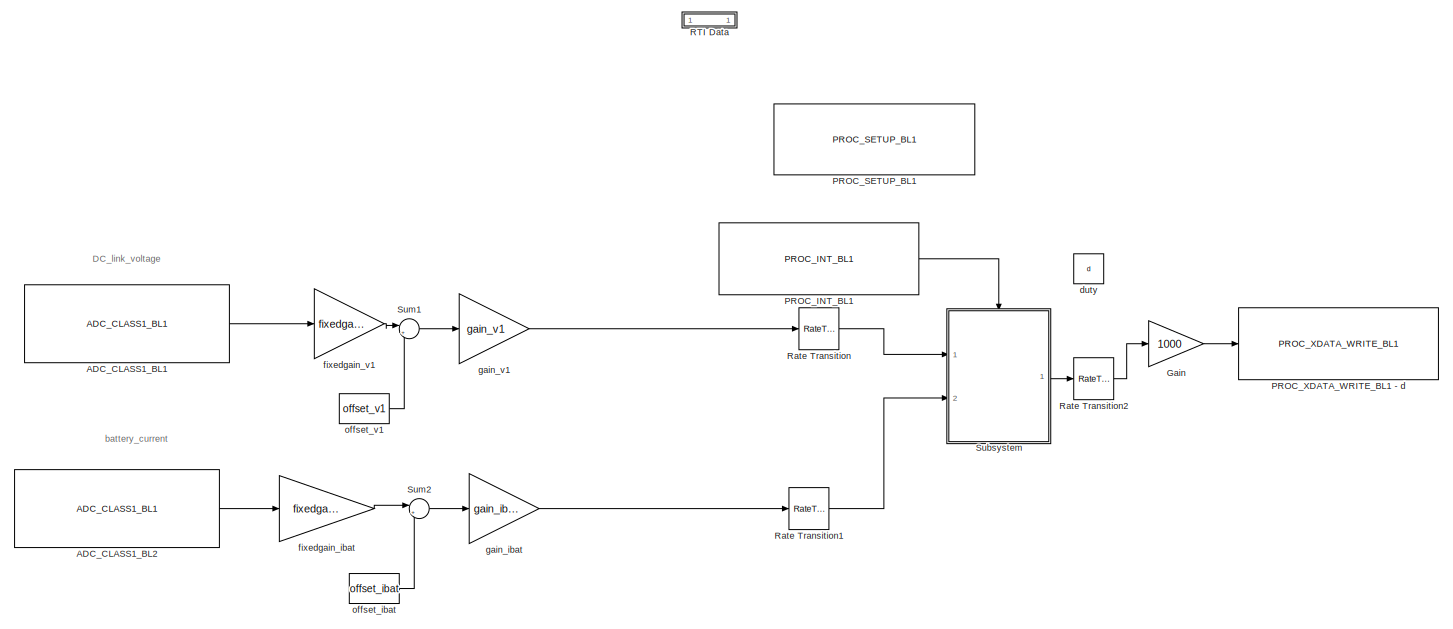
[diagram: root canvas - part 1/2, most of the canvas]
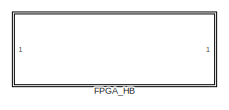
[diagram: root canvas - part 2/2, middle right region]
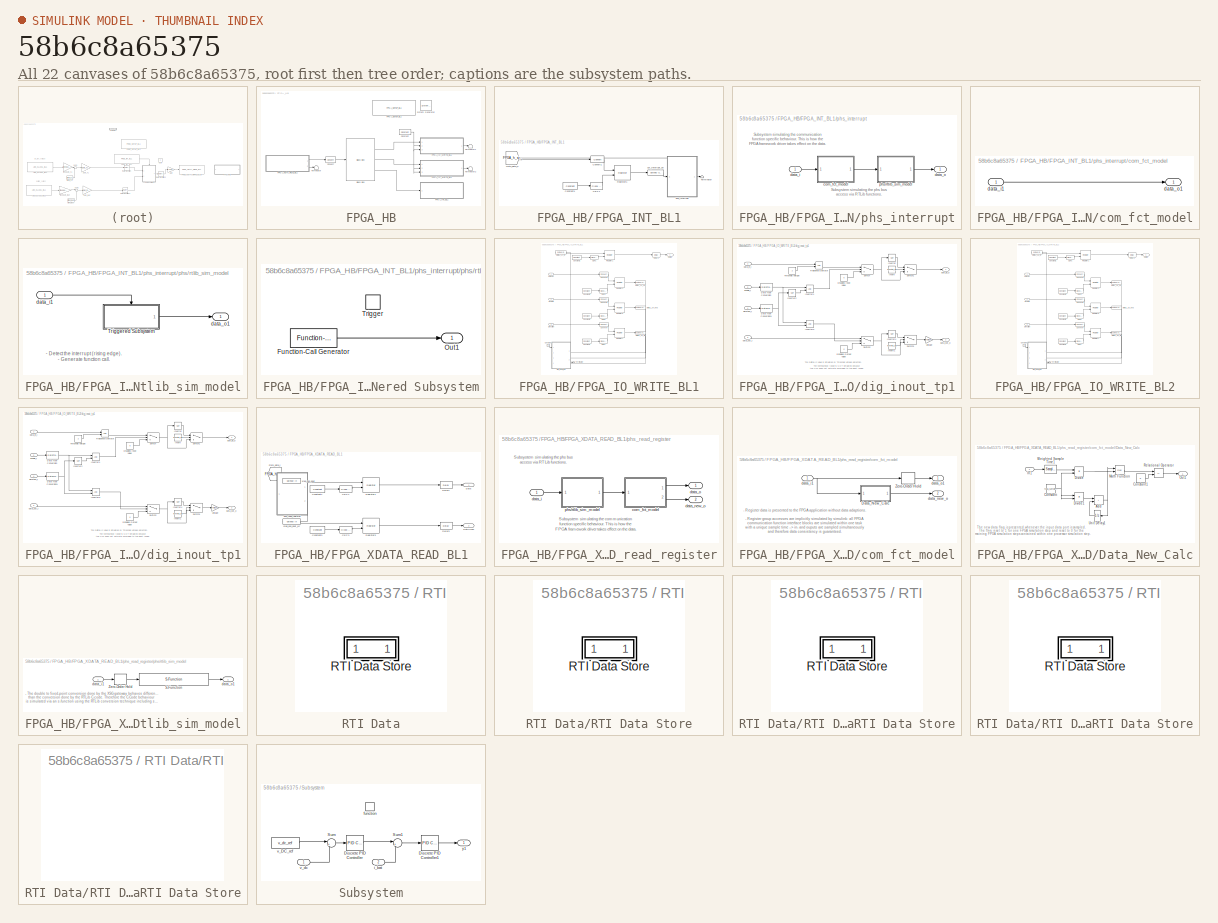
[diagram: thumbnail index - all 22 canvases of the model, root first then tree order]
MODEL slx_58b6c8a65375
KIND model
CONFIG AbsTol = auto
CONFIG EnableMultiTasking = off
CONFIG FixedStep = 50e-6
CONFIG InitFcn = , if any(exist('rtifpga_mdlclblib', 'file') ~= 0), rtifpga_mdlclblib('Init', bdroot); end,\n
CONFIG MaxStep = auto
CONFIG MinStep = auto
CONFIG PostLoadFcn = , if any(exist('dsrtsu_mdlpostloadfcn', 'file') ~= 0), dsrtsu_mdlpostloadfcn('Execute', bdroot); end, \n
CONFIG RelTol = 1e-3
CONFIG SampleTimeConstraint = Unconstrained
CONFIG Solver = VariableStepAuto
CONFIG SolverName = VariableStepAuto
CONFIG StartTime = 0.0
CONFIG StopTime = Inf
WORKSPACE source: mxarray member
WORKSPACE FPGA_h_sim_1_Register_1_1_1_write: Simulink.Signal (value not decoded)
BLOCK [Reference] ADC_CLASS1_BL1  REF=rti1202lib_adc_class1/ADC_CLASS1_BL1
  Ports = [0, 1]
  SourceBlock = rti1202lib_adc_class1/ADC_CLASS1_BL1
  SourceType = RTI
BLOCK [Reference] ADC_CLASS1_BL2  REF=rti1202lib_adc_class1/ADC_CLASS1_BL1
  Ports = [0, 1]
  SourceBlock = rti1202lib_adc_class1/ADC_CLASS1_BL1
  SourceType = RTI
BLOCK [SubSystem] FPGA_HB
  Ports = []
  RequestExecContextInheritance = off
BLOCK [Reference] FPGA_HB/ System Generator  REF=xbsIndex_r4/ System Generator
  AttributesFormatString = System\nGenerator
  Ports = []
  SourceBlock = xbsIndex_r4/ System Generator
  SourceType = Xilinx System Generator Block
  Tag = genX
  UserDataPersistent = on
BLOCK [Reference] FPGA_HB/Black Box  REF=xbsIndex_r4/Black Box
  Ports = [1, 3]
  SourceBlock = xbsIndex_r4/Black Box
  SourceType = Xilinx Black Box Block
BLOCK [Reference] FPGA_HB/Constant  REF=xbsIndex_r4/Constant
  Ports = [0, 1]
  SourceBlock = xbsIndex_r4/Constant
  SourceType = Xilinx Constant Block Block
BLOCK [Reference] FPGA_HB/Convert  REF=xbsIndex_r4/Convert
  Ports = [1, 1]
  SourceBlock = xbsIndex_r4/Convert
  SourceType = Xilinx Type Converter Block
BLOCK [SubSystem] FPGA_HB/FPGA_INT_BL1
  CloseFcn = try, rti_fpga_blk_closefcn(gcbh); catch,errordlg({lasterr, '','Please check your RTI installation.'},['Error: ' upper(bdroot)], 'replace'); end
  CopyFcn = try, rti_fpga_blk_copyfcn(gcbh); catch,errordlg({lasterr, '','Please check your RTI installation.'},['Error: ' upper(bdroot)], 'replace'); end
  DeleteFcn = try, rti_fpga_blk_deletefcn(gcbh); catch,errordlg({lasterr, '','Please check your RTI installation.'},['Error: ' upper(bdroot)], 'replace'); end
  InitFcn = try, rti_fpga_blk_initfcn(gcbh); catch,errordlg({lasterr, '','Please check your RTI installation.'},['Error: ' upper(bdroot)], 'replace'); end
  LoadFcn = try, rti_fpga_blk_loadfcn(gcbh); catch,errordlg({lasterr, '','Please check your RTI installation.'},['Error: ' upper(bdroot)], 'replace'); end
  MaskHideContents = on
  ModelCloseFcn = try, rti_fpga_blk_modelclosefcn(gcbh); catch,errordlg({lasterr, '','Please check your RTI installation.'},['Error: ' upper(bdroot)], 'replace'); end
  NameChangeFcn = try, rti_fpga_blk_namechangefcn(gcbh); catch,errordlg({lasterr, '','Please check your RTI installation.'},['Error: ' upper(bdroot)], 'replace'); end
  OpenFcn = try, rti_fpga_blk_openfcn(gcbh); catch,errordlg({lasterr, '','Please check your RTI installation.'},['Error: ' upper(bdroot)], 'replace'); end
  ParentCloseFcn = try, rti_fpga_blk_parentclosefcn(gcbh); catch,errordlg({lasterr, '','Please check your RTI installation.'},['Error: ' upper(bdroot)], 'replace'); end
  Ports = [1]
  PreSaveFcn = try, rti_fpga_blk_presavefcn(gcbh); catch,errordlg({lasterr, '','Please check your RTI installation.'},['Error: ' upper(bdroot)], 'replace'); end
  RequestExecContextInheritance = off
  StartFcn = try, rti_fpga_blk_startfcn(gcbh); catch,errordlg({lasterr, '','Please check your RTI installation.'},['Error: ' upper(bdroot)], 'replace'); end
BLOCK [Reference] FPGA_HB/FPGA_INT_BL1/CEP1  REF=xbsIndex_r4/Clock Enable Probe
  Ports = [1, 1]
  SourceBlock = xbsIndex_r4/Clock Enable Probe
  SourceType = Xilinx Clock Enable Probe Block
BLOCK [Reference] FPGA_HB/FPGA_INT_BL1/Constant1  REF=xbsIndex_r4/Constant
  Ports = [0, 1]
  SourceBlock = xbsIndex_r4/Constant
  SourceType = Xilinx Constant Block Block
BLOCK [Reference] FPGA_HB/FPGA_INT_BL1/Convert1  REF=xbsIndex_r4/Convert
  Ports = [1, 1]
  SourceBlock = xbsIndex_r4/Convert
  SourceType = Xilinx Type Converter Block
BLOCK [Goto] FPGA_HB/FPGA_INT_BL1/Goto_data_o
  GotoTag = FPGA_h_sim_1_Interrupt_1_1_write
  TagVisibility = global
BLOCK [Inport] FPGA_HB/FPGA_INT_BL1/Int
BLOCK [Reference] FPGA_HB/FPGA_INT_BL1/Register1  REF=xbsIndex_r4/Register
  Ports = [2, 1]
  SourceBlock = xbsIndex_r4/Register
  SourceType = Xilinx Register Block
BLOCK [Terminator] FPGA_HB/FPGA_INT_BL1/Terminator
BLOCK [SubSystem] FPGA_HB/FPGA_INT_BL1/phs_interrupt
  Ports = [1, 1]
  RequestExecContextInheritance = off
BLOCK [SubSystem] FPGA_HB/FPGA_INT_BL1/phs_interrupt/com_fct_model
  Ports = [1, 1]
  RequestExecContextInheritance = off
BLOCK [Inport] FPGA_HB/FPGA_INT_BL1/phs_interrupt/com_fct_model/data_i1
BLOCK [Outport] FPGA_HB/FPGA_INT_BL1/phs_interrupt/com_fct_model/data_o1
  VectorParamsAs1DForOutWhenUnconnected = off
BLOCK [Inport] FPGA_HB/FPGA_INT_BL1/phs_interrupt/data_i
BLOCK [Outport] FPGA_HB/FPGA_INT_BL1/phs_interrupt/data_o
  VectorParamsAs1DForOutWhenUnconnected = off
BLOCK [SubSystem] FPGA_HB/FPGA_INT_BL1/phs_interrupt/phs//rtlib_sim_model
  Ports = [1, 1]
  RequestExecContextInheritance = off
BLOCK [SubSystem] FPGA_HB/FPGA_INT_BL1/phs_interrupt/phs//rtlib_sim_model/Triggered Subsystem
  Ports = [0, 1, 0, 1]
  RequestExecContextInheritance = off
  TreatAsAtomicUnit = on
BLOCK [Reference] FPGA_HB/FPGA_INT_BL1/phs_interrupt/phs//rtlib_sim_model/Triggered Subsystem/Function-Call Generator  REF=simulink/Ports &
Subsystems/Function-Call
Generator
  Ports = [0, 1]
  SourceBlock = simulink/Ports &\nSubsystems/Function-Call\nGenerator
  SourceProductBaseCode = SL
  SourceType = Function-Call Generator
BLOCK [Outport] FPGA_HB/FPGA_INT_BL1/phs_interrupt/phs//rtlib_sim_model/Triggered Subsystem/Out1
  VectorParamsAs1DForOutWhenUnconnected = off
BLOCK [TriggerPort] FPGA_HB/FPGA_INT_BL1/phs_interrupt/phs//rtlib_sim_model/Triggered Subsystem/Trigger
  Ports = []
  StatesWhenEnabling = held
  VariantControl = (inherit)
BLOCK [Inport] FPGA_HB/FPGA_INT_BL1/phs_interrupt/phs//rtlib_sim_model/data_i1
BLOCK [Outport] FPGA_HB/FPGA_INT_BL1/phs_interrupt/phs//rtlib_sim_model/data_o1
  VectorParamsAs1DForOutWhenUnconnected = off
BLOCK [Reference] FPGA_HB/FPGA_INT_BL1/usr_interrupt_00  REF=xbsIndex_r4/Gateway Out
  Ports = [1, 1]
  SourceBlock = xbsIndex_r4/Gateway Out
  SourceType = Xilinx Gateway Out Block
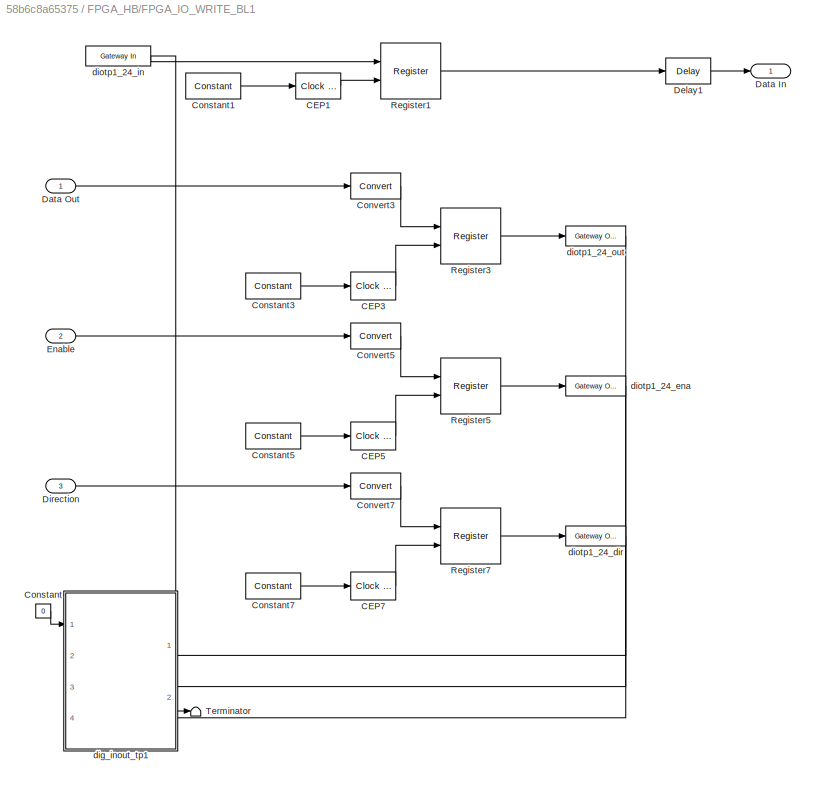
BLOCK [SubSystem] FPGA_HB/FPGA_IO_WRITE_BL1
  CloseFcn = try, rti_fpga_blk_closefcn(gcbh); catch,errordlg({lasterr, '','Please check your RTI installation.'},['Error: ' upper(bdroot)], 'replace'); end
  CopyFcn = try, rti_fpga_blk_copyfcn(gcbh); catch,errordlg({lasterr, '','Please check your RTI installation.'},['Error: ' upper(bdroot)], 'replace'); end
  DeleteFcn = try, rti_fpga_blk_deletefcn(gcbh); catch,errordlg({lasterr, '','Please check your RTI installation.'},['Error: ' upper(bdroot)], 'replace'); end
  InitFcn = try, rti_fpga_blk_initfcn(gcbh); catch,errordlg({lasterr, '','Please check your RTI installation.'},['Error: ' upper(bdroot)], 'replace'); end
  LoadFcn = try, rti_fpga_blk_loadfcn(gcbh); catch,errordlg({lasterr, '','Please check your RTI installation.'},['Error: ' upper(bdroot)], 'replace'); end
  MaskHideContents = on
  ModelCloseFcn = try, rti_fpga_blk_modelclosefcn(gcbh); catch,errordlg({lasterr, '','Please check your RTI installation.'},['Error: ' upper(bdroot)], 'replace'); end
  NameChangeFcn = try, rti_fpga_blk_namechangefcn(gcbh); catch,errordlg({lasterr, '','Please check your RTI installation.'},['Error: ' upper(bdroot)], 'replace'); end
  OpenFcn = try, rti_fpga_blk_openfcn(gcbh); catch,errordlg({lasterr, '','Please check your RTI installation.'},['Error: ' upper(bdroot)], 'replace'); end
  ParentCloseFcn = try, rti_fpga_blk_parentclosefcn(gcbh); catch,errordlg({lasterr, '','Please check your RTI installation.'},['Error: ' upper(bdroot)], 'replace'); end
  Ports = [3, 1]
  PreSaveFcn = try, rti_fpga_blk_presavefcn(gcbh); catch,errordlg({lasterr, '','Please check your RTI installation.'},['Error: ' upper(bdroot)], 'replace'); end
  RequestExecContextInheritance = off
  StartFcn = try, rti_fpga_blk_startfcn(gcbh); catch,errordlg({lasterr, '','Please check your RTI installation.'},['Error: ' upper(bdroot)], 'replace'); end
BLOCK [Reference] FPGA_HB/FPGA_IO_WRITE_BL1/CEP1  REF=xbsIndex_r4/Clock Enable Probe
  Ports = [1, 1]
  SourceBlock = xbsIndex_r4/Clock Enable Probe
  SourceType = Xilinx Clock Enable Probe Block
BLOCK [Reference] FPGA_HB/FPGA_IO_WRITE_BL1/CEP3  REF=xbsIndex_r4/Clock Enable Probe
  Ports = [1, 1]
  SourceBlock = xbsIndex_r4/Clock Enable Probe
  SourceType = Xilinx Clock Enable Probe Block
BLOCK [Reference] FPGA_HB/FPGA_IO_WRITE_BL1/CEP5  REF=xbsIndex_r4/Clock Enable Probe
  Ports = [1, 1]
  SourceBlock = xbsIndex_r4/Clock Enable Probe
  SourceType = Xilinx Clock Enable Probe Block
BLOCK [Reference] FPGA_HB/FPGA_IO_WRITE_BL1/CEP7  REF=xbsIndex_r4/Clock Enable Probe
  Ports = [1, 1]
  SourceBlock = xbsIndex_r4/Clock Enable Probe
  SourceType = Xilinx Clock Enable Probe Block
BLOCK [Constant] FPGA_HB/FPGA_IO_WRITE_BL1/Constant
  Value = 0
BLOCK [Reference] FPGA_HB/FPGA_IO_WRITE_BL1/Constant1  REF=xbsIndex_r4/Constant
  Ports = [0, 1]
  SourceBlock = xbsIndex_r4/Constant
  SourceType = Xilinx Constant Block Block
BLOCK [Reference] FPGA_HB/FPGA_IO_WRITE_BL1/Constant3  REF=xbsIndex_r4/Constant
  Ports = [0, 1]
  SourceBlock = xbsIndex_r4/Constant
  SourceType = Xilinx Constant Block Block
BLOCK [Reference] FPGA_HB/FPGA_IO_WRITE_BL1/Constant5  REF=xbsIndex_r4/Constant
  Ports = [0, 1]
  SourceBlock = xbsIndex_r4/Constant
  SourceType = Xilinx Constant Block Block
BLOCK [Reference] FPGA_HB/FPGA_IO_WRITE_BL1/Constant7  REF=xbsIndex_r4/Constant
  Ports = [0, 1]
  SourceBlock = xbsIndex_r4/Constant
  SourceType = Xilinx Constant Block Block
BLOCK [Reference] FPGA_HB/FPGA_IO_WRITE_BL1/Convert3  REF=xbsIndex_r4/Convert
  Ports = [1, 1]
  SourceBlock = xbsIndex_r4/Convert
  SourceType = Xilinx Type Converter Block
BLOCK [Reference] FPGA_HB/FPGA_IO_WRITE_BL1/Convert5  REF=xbsIndex_r4/Convert
  Ports = [1, 1]
  SourceBlock = xbsIndex_r4/Convert
  SourceType = Xilinx Type Converter Block
BLOCK [Reference] FPGA_HB/FPGA_IO_WRITE_BL1/Convert7  REF=xbsIndex_r4/Convert
  Ports = [1, 1]
  SourceBlock = xbsIndex_r4/Convert
  SourceType = Xilinx Type Converter Block
BLOCK [Outport] FPGA_HB/FPGA_IO_WRITE_BL1/Data In
BLOCK [Inport] FPGA_HB/FPGA_IO_WRITE_BL1/Data Out
BLOCK [Reference] FPGA_HB/FPGA_IO_WRITE_BL1/Delay1  REF=xbsIndex_r4/Delay
  Ports = [1, 1]
  SourceBlock = xbsIndex_r4/Delay
  SourceType = Xilinx Delay Block
BLOCK [Inport] FPGA_HB/FPGA_IO_WRITE_BL1/Direction
  Port = 3
BLOCK [Inport] FPGA_HB/FPGA_IO_WRITE_BL1/Enable
  Port = 2
BLOCK [Reference] FPGA_HB/FPGA_IO_WRITE_BL1/Register1  REF=xbsIndex_r4/Register
  Ports = [2, 1]
  SourceBlock = xbsIndex_r4/Register
  SourceType = Xilinx Register Block
BLOCK [Reference] FPGA_HB/FPGA_IO_WRITE_BL1/Register3  REF=xbsIndex_r4/Register
  Ports = [2, 1]
  SourceBlock = xbsIndex_r4/Register
  SourceType = Xilinx Register Block
BLOCK [Reference] FPGA_HB/FPGA_IO_WRITE_BL1/Register5  REF=xbsIndex_r4/Register
  Ports = [2, 1]
  SourceBlock = xbsIndex_r4/Register
  SourceType = Xilinx Register Block
BLOCK [Reference] FPGA_HB/FPGA_IO_WRITE_BL1/Register7  REF=xbsIndex_r4/Register
  Ports = [2, 1]
  SourceBlock = xbsIndex_r4/Register
  SourceType = Xilinx Register Block
BLOCK [Terminator] FPGA_HB/FPGA_IO_WRITE_BL1/Terminator
BLOCK [SubSystem] FPGA_HB/FPGA_IO_WRITE_BL1/dig_inout_tp1
  Ports = [4, 2]
  RequestExecContextInheritance = off
BLOCK [DataTypeConversion] FPGA_HB/FPGA_IO_WRITE_BL1/dig_inout_tp1/Data Type Conversion
  RndMeth = Floor
  SaturateOnIntegerOverflow = off
BLOCK [DataTypeConversion] FPGA_HB/FPGA_IO_WRITE_BL1/dig_inout_tp1/Data Type Conversion1
  RndMeth = Floor
  SaturateOnIntegerOverflow = off
BLOCK [Constant] FPGA_HB/FPGA_IO_WRITE_BL1/dig_inout_tp1/Disabled Input Value
  Value = 0
BLOCK [Constant] FPGA_HB/FPGA_IO_WRITE_BL1/dig_inout_tp1/Disabled Output Value
  Value = 0
BLOCK [Constant] FPGA_HB/FPGA_IO_WRITE_BL1/dig_inout_tp1/Invert
  Value = inverted_dio
BLOCK [Constant] FPGA_HB/FPGA_IO_WRITE_BL1/dig_inout_tp1/Invert1
  Value = inverted_dio
BLOCK [Logic] FPGA_HB/FPGA_IO_WRITE_BL1/dig_inout_tp1/Inverter
  AllPortsSameDT = off
  Operator = NOT
  OutDataTypeStr = boolean
  Ports = [1, 1]
BLOCK [Logic] FPGA_HB/FPGA_IO_WRITE_BL1/dig_inout_tp1/Inverter1
  AllPortsSameDT = off
  OutDataTypeStr = boolean
  Ports = [2, 1]
BLOCK [Logic] FPGA_HB/FPGA_IO_WRITE_BL1/dig_inout_tp1/Inverter2
  AllPortsSameDT = off
  Operator = NOT
  OutDataTypeStr = boolean
  Ports = [1, 1]
BLOCK [Logic] FPGA_HB/FPGA_IO_WRITE_BL1/dig_inout_tp1/Inverter3
  AllPortsSameDT = off
  OutDataTypeStr = boolean
  Ports = [2, 1]
BLOCK [Logic] FPGA_HB/FPGA_IO_WRITE_BL1/dig_inout_tp1/Inverter4
  AllPortsSameDT = off
  Operator = NOT
  OutDataTypeStr = boolean
  Ports = [1, 1]
BLOCK [RelationalOperator] FPGA_HB/FPGA_IO_WRITE_BL1/dig_inout_tp1/Relational Operator
  InputSameDT = off
  OutDataTypeStr = boolean
  Ports = [2, 1]
BLOCK [Switch] FPGA_HB/FPGA_IO_WRITE_BL1/dig_inout_tp1/Switch
  InputSameDT = off
  SaturateOnIntegerOverflow = off
  Threshold = 1
BLOCK [Switch] FPGA_HB/FPGA_IO_WRITE_BL1/dig_inout_tp1/Switch1
  InputSameDT = off
  SaturateOnIntegerOverflow = off
  Threshold = 1
BLOCK [Switch] FPGA_HB/FPGA_IO_WRITE_BL1/dig_inout_tp1/Switch2
  InputSameDT = off
  SaturateOnIntegerOverflow = off
  Threshold = 1
BLOCK [Switch] FPGA_HB/FPGA_IO_WRITE_BL1/dig_inout_tp1/Switch3
  InputSameDT = off
  SaturateOnIntegerOverflow = off
  Threshold = 1
BLOCK [Constant] FPGA_HB/FPGA_IO_WRITE_BL1/dig_inout_tp1/Threshold Voltage
  Value = 2
BLOCK [Gain] FPGA_HB/FPGA_IO_WRITE_BL1/dig_inout_tp1/Voltage
  Gain = voltage
  ParamDataTypeStr = float('double')
BLOCK [Inport] FPGA_HB/FPGA_IO_WRITE_BL1/dig_inout_tp1/data_in_i
BLOCK [Outport] FPGA_HB/FPGA_IO_WRITE_BL1/dig_inout_tp1/data_in_o
  VectorParamsAs1DForOutWhenUnconnected = off
BLOCK [Inport] FPGA_HB/FPGA_IO_WRITE_BL1/dig_inout_tp1/data_out_i
  Port = 3
BLOCK [Outport] FPGA_HB/FPGA_IO_WRITE_BL1/dig_inout_tp1/data_out_o
  Port = 2
  VectorParamsAs1DForOutWhenUnconnected = off
BLOCK [Inport] FPGA_HB/FPGA_IO_WRITE_BL1/dig_inout_tp1/direction_i
  Port = 4
BLOCK [Inport] FPGA_HB/FPGA_IO_WRITE_BL1/dig_inout_tp1/enable_i
  Port = 2
BLOCK [Reference] FPGA_HB/FPGA_IO_WRITE_BL1/diotp1_24_dir  REF=xbsIndex_r4/Gateway Out
  Ports = [1, 1]
  SourceBlock = xbsIndex_r4/Gateway Out
  SourceType = Xilinx Gateway Out Block
BLOCK [Reference] FPGA_HB/FPGA_IO_WRITE_BL1/diotp1_24_ena  REF=xbsIndex_r4/Gateway Out
  Ports = [1, 1]
  SourceBlock = xbsIndex_r4/Gateway Out
  SourceType = Xilinx Gateway Out Block
BLOCK [Reference] FPGA_HB/FPGA_IO_WRITE_BL1/diotp1_24_in  REF=xbsIndex_r4/Gateway In
  Ports = [1, 1]
  SourceBlock = xbsIndex_r4/Gateway In
  SourceType = Xilinx Gateway In Block
BLOCK [Reference] FPGA_HB/FPGA_IO_WRITE_BL1/diotp1_24_out  REF=xbsIndex_r4/Gateway Out
  Ports = [1, 1]
  SourceBlock = xbsIndex_r4/Gateway Out
  SourceType = Xilinx Gateway Out Block
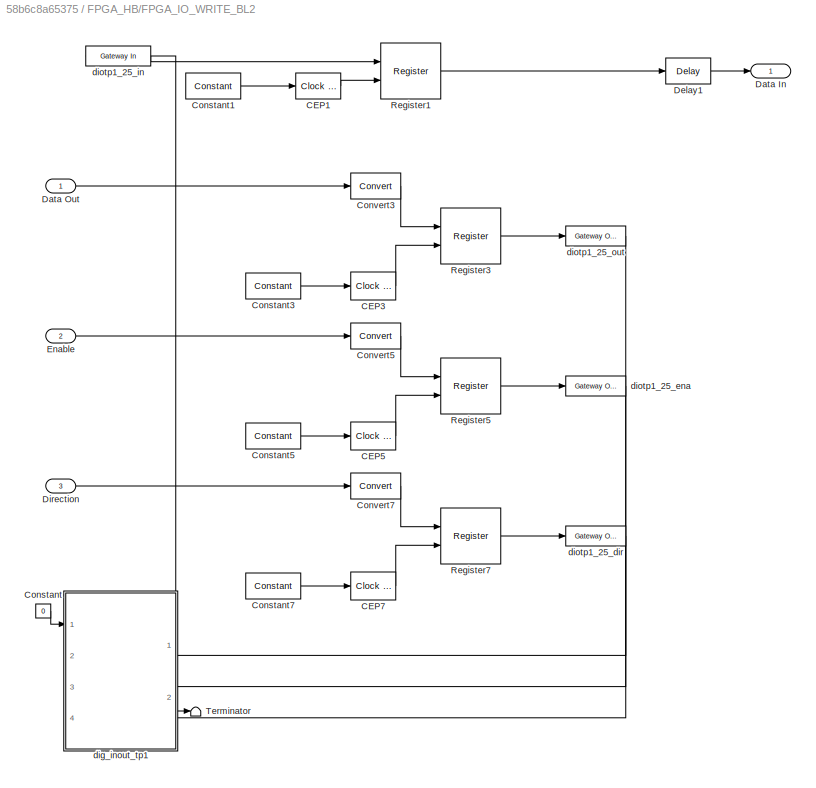
BLOCK [SubSystem] FPGA_HB/FPGA_IO_WRITE_BL2
  CloseFcn = try, rti_fpga_blk_closefcn(gcbh); catch,errordlg({lasterr, '','Please check your RTI installation.'},['Error: ' upper(bdroot)], 'replace'); end
  CopyFcn = try, rti_fpga_blk_copyfcn(gcbh); catch,errordlg({lasterr, '','Please check your RTI installation.'},['Error: ' upper(bdroot)], 'replace'); end
  DeleteFcn = try, rti_fpga_blk_deletefcn(gcbh); catch,errordlg({lasterr, '','Please check your RTI installation.'},['Error: ' upper(bdroot)], 'replace'); end
  InitFcn = try, rti_fpga_blk_initfcn(gcbh); catch,errordlg({lasterr, '','Please check your RTI installation.'},['Error: ' upper(bdroot)], 'replace'); end
  LoadFcn = try, rti_fpga_blk_loadfcn(gcbh); catch,errordlg({lasterr, '','Please check your RTI installation.'},['Error: ' upper(bdroot)], 'replace'); end
  MaskHideContents = on
  ModelCloseFcn = try, rti_fpga_blk_modelclosefcn(gcbh); catch,errordlg({lasterr, '','Please check your RTI installation.'},['Error: ' upper(bdroot)], 'replace'); end
  NameChangeFcn = try, rti_fpga_blk_namechangefcn(gcbh); catch,errordlg({lasterr, '','Please check your RTI installation.'},['Error: ' upper(bdroot)], 'replace'); end
  OpenFcn = try, rti_fpga_blk_openfcn(gcbh); catch,errordlg({lasterr, '','Please check your RTI installation.'},['Error: ' upper(bdroot)], 'replace'); end
  ParentCloseFcn = try, rti_fpga_blk_parentclosefcn(gcbh); catch,errordlg({lasterr, '','Please check your RTI installation.'},['Error: ' upper(bdroot)], 'replace'); end
  Ports = [3, 1]
  PreSaveFcn = try, rti_fpga_blk_presavefcn(gcbh); catch,errordlg({lasterr, '','Please check your RTI installation.'},['Error: ' upper(bdroot)], 'replace'); end
  RequestExecContextInheritance = off
  StartFcn = try, rti_fpga_blk_startfcn(gcbh); catch,errordlg({lasterr, '','Please check your RTI installation.'},['Error: ' upper(bdroot)], 'replace'); end
BLOCK [Reference] FPGA_HB/FPGA_IO_WRITE_BL2/CEP1  REF=xbsIndex_r4/Clock Enable Probe
  Ports = [1, 1]
  SourceBlock = xbsIndex_r4/Clock Enable Probe
  SourceType = Xilinx Clock Enable Probe Block
BLOCK [Reference] FPGA_HB/FPGA_IO_WRITE_BL2/CEP3  REF=xbsIndex_r4/Clock Enable Probe
  Ports = [1, 1]
  SourceBlock = xbsIndex_r4/Clock Enable Probe
  SourceType = Xilinx Clock Enable Probe Block
BLOCK [Reference] FPGA_HB/FPGA_IO_WRITE_BL2/CEP5  REF=xbsIndex_r4/Clock Enable Probe
  Ports = [1, 1]
  SourceBlock = xbsIndex_r4/Clock Enable Probe
  SourceType = Xilinx Clock Enable Probe Block
BLOCK [Reference] FPGA_HB/FPGA_IO_WRITE_BL2/CEP7  REF=xbsIndex_r4/Clock Enable Probe
  Ports = [1, 1]
  SourceBlock = xbsIndex_r4/Clock Enable Probe
  SourceType = Xilinx Clock Enable Probe Block
BLOCK [Constant] FPGA_HB/FPGA_IO_WRITE_BL2/Constant
  Value = 0
BLOCK [Reference] FPGA_HB/FPGA_IO_WRITE_BL2/Constant1  REF=xbsIndex_r4/Constant
  Ports = [0, 1]
  SourceBlock = xbsIndex_r4/Constant
  SourceType = Xilinx Constant Block Block
BLOCK [Reference] FPGA_HB/FPGA_IO_WRITE_BL2/Constant3  REF=xbsIndex_r4/Constant
  Ports = [0, 1]
  SourceBlock = xbsIndex_r4/Constant
  SourceType = Xilinx Constant Block Block
BLOCK [Reference] FPGA_HB/FPGA_IO_WRITE_BL2/Constant5  REF=xbsIndex_r4/Constant
  Ports = [0, 1]
  SourceBlock = xbsIndex_r4/Constant
  SourceType = Xilinx Constant Block Block
BLOCK [Reference] FPGA_HB/FPGA_IO_WRITE_BL2/Constant7  REF=xbsIndex_r4/Constant
  Ports = [0, 1]
  SourceBlock = xbsIndex_r4/Constant
  SourceType = Xilinx Constant Block Block
BLOCK [Reference] FPGA_HB/FPGA_IO_WRITE_BL2/Convert3  REF=xbsIndex_r4/Convert
  Ports = [1, 1]
  SourceBlock = xbsIndex_r4/Convert
  SourceType = Xilinx Type Converter Block
BLOCK [Reference] FPGA_HB/FPGA_IO_WRITE_BL2/Convert5  REF=xbsIndex_r4/Convert
  Ports = [1, 1]
  SourceBlock = xbsIndex_r4/Convert
  SourceType = Xilinx Type Converter Block
BLOCK [Reference] FPGA_HB/FPGA_IO_WRITE_BL2/Convert7  REF=xbsIndex_r4/Convert
  Ports = [1, 1]
  SourceBlock = xbsIndex_r4/Convert
  SourceType = Xilinx Type Converter Block
BLOCK [Outport] FPGA_HB/FPGA_IO_WRITE_BL2/Data In
BLOCK [Inport] FPGA_HB/FPGA_IO_WRITE_BL2/Data Out
BLOCK [Reference] FPGA_HB/FPGA_IO_WRITE_BL2/Delay1  REF=xbsIndex_r4/Delay
  Ports = [1, 1]
  SourceBlock = xbsIndex_r4/Delay
  SourceType = Xilinx Delay Block
BLOCK [Inport] FPGA_HB/FPGA_IO_WRITE_BL2/Direction
  Port = 3
BLOCK [Inport] FPGA_HB/FPGA_IO_WRITE_BL2/Enable
  Port = 2
BLOCK [Reference] FPGA_HB/FPGA_IO_WRITE_BL2/Register1  REF=xbsIndex_r4/Register
  Ports = [2, 1]
  SourceBlock = xbsIndex_r4/Register
  SourceType = Xilinx Register Block
BLOCK [Reference] FPGA_HB/FPGA_IO_WRITE_BL2/Register3  REF=xbsIndex_r4/Register
  Ports = [2, 1]
  SourceBlock = xbsIndex_r4/Register
  SourceType = Xilinx Register Block
BLOCK [Reference] FPGA_HB/FPGA_IO_WRITE_BL2/Register5  REF=xbsIndex_r4/Register
  Ports = [2, 1]
  SourceBlock = xbsIndex_r4/Register
  SourceType = Xilinx Register Block
BLOCK [Reference] FPGA_HB/FPGA_IO_WRITE_BL2/Register7  REF=xbsIndex_r4/Register
  Ports = [2, 1]
  SourceBlock = xbsIndex_r4/Register
  SourceType = Xilinx Register Block
BLOCK [Terminator] FPGA_HB/FPGA_IO_WRITE_BL2/Terminator
BLOCK [SubSystem] FPGA_HB/FPGA_IO_WRITE_BL2/dig_inout_tp1
  Ports = [4, 2]
  RequestExecContextInheritance = off
BLOCK [DataTypeConversion] FPGA_HB/FPGA_IO_WRITE_BL2/dig_inout_tp1/Data Type Conversion
  RndMeth = Floor
  SaturateOnIntegerOverflow = off
BLOCK [DataTypeConversion] FPGA_HB/FPGA_IO_WRITE_BL2/dig_inout_tp1/Data Type Conversion1
  RndMeth = Floor
  SaturateOnIntegerOverflow = off
BLOCK [Constant] FPGA_HB/FPGA_IO_WRITE_BL2/dig_inout_tp1/Disabled Input Value
  Value = 0
BLOCK [Constant] FPGA_HB/FPGA_IO_WRITE_BL2/dig_inout_tp1/Disabled Output Value
  Value = 0
BLOCK [Constant] FPGA_HB/FPGA_IO_WRITE_BL2/dig_inout_tp1/Invert
  Value = inverted_dio
BLOCK [Constant] FPGA_HB/FPGA_IO_WRITE_BL2/dig_inout_tp1/Invert1
  Value = inverted_dio
BLOCK [Logic] FPGA_HB/FPGA_IO_WRITE_BL2/dig_inout_tp1/Inverter
  AllPortsSameDT = off
  Operator = NOT
  OutDataTypeStr = boolean
  Ports = [1, 1]
BLOCK [Logic] FPGA_HB/FPGA_IO_WRITE_BL2/dig_inout_tp1/Inverter1
  AllPortsSameDT = off
  OutDataTypeStr = boolean
  Ports = [2, 1]
BLOCK [Logic] FPGA_HB/FPGA_IO_WRITE_BL2/dig_inout_tp1/Inverter2
  AllPortsSameDT = off
  Operator = NOT
  OutDataTypeStr = boolean
  Ports = [1, 1]
BLOCK [Logic] FPGA_HB/FPGA_IO_WRITE_BL2/dig_inout_tp1/Inverter3
  AllPortsSameDT = off
  OutDataTypeStr = boolean
  Ports = [2, 1]
BLOCK [Logic] FPGA_HB/FPGA_IO_WRITE_BL2/dig_inout_tp1/Inverter4
  AllPortsSameDT = off
  Operator = NOT
  OutDataTypeStr = boolean
  Ports = [1, 1]
BLOCK [RelationalOperator] FPGA_HB/FPGA_IO_WRITE_BL2/dig_inout_tp1/Relational Operator
  InputSameDT = off
  OutDataTypeStr = boolean
  Ports = [2, 1]
BLOCK [Switch] FPGA_HB/FPGA_IO_WRITE_BL2/dig_inout_tp1/Switch
  InputSameDT = off
  SaturateOnIntegerOverflow = off
  Threshold = 1
BLOCK [Switch] FPGA_HB/FPGA_IO_WRITE_BL2/dig_inout_tp1/Switch1
  InputSameDT = off
  SaturateOnIntegerOverflow = off
  Threshold = 1
BLOCK [Switch] FPGA_HB/FPGA_IO_WRITE_BL2/dig_inout_tp1/Switch2
  InputSameDT = off
  SaturateOnIntegerOverflow = off
  Threshold = 1
BLOCK [Switch] FPGA_HB/FPGA_IO_WRITE_BL2/dig_inout_tp1/Switch3
  InputSameDT = off
  SaturateOnIntegerOverflow = off
  Threshold = 1
BLOCK [Constant] FPGA_HB/FPGA_IO_WRITE_BL2/dig_inout_tp1/Threshold Voltage
  Value = 2
BLOCK [Gain] FPGA_HB/FPGA_IO_WRITE_BL2/dig_inout_tp1/Voltage
  Gain = voltage
  ParamDataTypeStr = float('double')
BLOCK [Inport] FPGA_HB/FPGA_IO_WRITE_BL2/dig_inout_tp1/data_in_i
BLOCK [Outport] FPGA_HB/FPGA_IO_WRITE_BL2/dig_inout_tp1/data_in_o
  VectorParamsAs1DForOutWhenUnconnected = off
BLOCK [Inport] FPGA_HB/FPGA_IO_WRITE_BL2/dig_inout_tp1/data_out_i
  Port = 3
BLOCK [Outport] FPGA_HB/FPGA_IO_WRITE_BL2/dig_inout_tp1/data_out_o
  Port = 2
  VectorParamsAs1DForOutWhenUnconnected = off
BLOCK [Inport] FPGA_HB/FPGA_IO_WRITE_BL2/dig_inout_tp1/direction_i
  Port = 4
BLOCK [Inport] FPGA_HB/FPGA_IO_WRITE_BL2/dig_inout_tp1/enable_i
  Port = 2
BLOCK [Reference] FPGA_HB/FPGA_IO_WRITE_BL2/diotp1_25_dir  REF=xbsIndex_r4/Gateway Out
  Ports = [1, 1]
  SourceBlock = xbsIndex_r4/Gateway Out
  SourceType = Xilinx Gateway Out Block
BLOCK [Reference] FPGA_HB/FPGA_IO_WRITE_BL2/diotp1_25_ena  REF=xbsIndex_r4/Gateway Out
  Ports = [1, 1]
  SourceBlock = xbsIndex_r4/Gateway Out
  SourceType = Xilinx Gateway Out Block
BLOCK [Reference] FPGA_HB/FPGA_IO_WRITE_BL2/diotp1_25_in  REF=xbsIndex_r4/Gateway In
  Ports = [1, 1]
  SourceBlock = xbsIndex_r4/Gateway In
  SourceType = Xilinx Gateway In Block
BLOCK [Reference] FPGA_HB/FPGA_IO_WRITE_BL2/diotp1_25_out  REF=xbsIndex_r4/Gateway Out
  Ports = [1, 1]
  SourceBlock = xbsIndex_r4/Gateway Out
  SourceType = Xilinx Gateway Out Block
BLOCK [Reference] FPGA_HB/FPGA_SETUP_BL1  REF=rtifpgainterfacelib/FPGA_SETUP_BL1
  Ports = []
  SourceBlock = rtifpgainterfacelib/FPGA_SETUP_BL1
  SourceType = RTI
BLOCK [SubSystem] FPGA_HB/FPGA_XDATA_READ_BL1
  CloseFcn = try, rti_fpga_blk_closefcn(gcbh); catch,errordlg({lasterr, '','Please check your RTI installation.'},['Error: ' upper(bdroot)], 'replace'); end
  CopyFcn = try, rti_fpga_blk_copyfcn(gcbh); catch,errordlg({lasterr, '','Please check your RTI installation.'},['Error: ' upper(bdroot)], 'replace'); end
  DeleteFcn = try, rti_fpga_blk_deletefcn(gcbh); catch,errordlg({lasterr, '','Please check your RTI installation.'},['Error: ' upper(bdroot)], 'replace'); end
  InitFcn = try, rti_fpga_blk_initfcn(gcbh); catch,errordlg({lasterr, '','Please check your RTI installation.'},['Error: ' upper(bdroot)], 'replace'); end
  LoadFcn = try, rti_fpga_blk_loadfcn(gcbh); catch,errordlg({lasterr, '','Please check your RTI installation.'},['Error: ' upper(bdroot)], 'replace'); end
  MaskHideContents = on
  ModelCloseFcn = try, rti_fpga_blk_modelclosefcn(gcbh); catch,errordlg({lasterr, '','Please check your RTI installation.'},['Error: ' upper(bdroot)], 'replace'); end
  NameChangeFcn = try, rti_fpga_blk_namechangefcn(gcbh); catch,errordlg({lasterr, '','Please check your RTI installation.'},['Error: ' upper(bdroot)], 'replace'); end
  OpenFcn = try, rti_fpga_blk_openfcn(gcbh); catch,errordlg({lasterr, '','Please check your RTI installation.'},['Error: ' upper(bdroot)], 'replace'); end
  ParentCloseFcn = try, rti_fpga_blk_parentclosefcn(gcbh); catch,errordlg({lasterr, '','Please check your RTI installation.'},['Error: ' upper(bdroot)], 'replace'); end
  Ports = [0, 2]
  PreSaveFcn = try, rti_fpga_blk_presavefcn(gcbh); catch,errordlg({lasterr, '','Please check your RTI installation.'},['Error: ' upper(bdroot)], 'replace'); end
  RequestExecContextInheritance = off
  StartFcn = try, rti_fpga_blk_startfcn(gcbh); catch,errordlg({lasterr, '','Please check your RTI installation.'},['Error: ' upper(bdroot)], 'replace'); end
BLOCK [Reference] FPGA_HB/FPGA_XDATA_READ_BL1/CEP1  REF=xbsIndex_r4/Clock Enable Probe
  Ports = [1, 1]
  SourceBlock = xbsIndex_r4/Clock Enable Probe
  SourceType = Xilinx Clock Enable Probe Block
BLOCK [Reference] FPGA_HB/FPGA_XDATA_READ_BL1/CEP3  REF=xbsIndex_r4/Clock Enable Probe
  Ports = [1, 1]
  SourceBlock = xbsIndex_r4/Clock Enable Probe
  SourceType = Xilinx Clock Enable Probe Block
BLOCK [Reference] FPGA_HB/FPGA_XDATA_READ_BL1/Constant1  REF=xbsIndex_r4/Constant
  Ports = [0, 1]
  SourceBlock = xbsIndex_r4/Constant
  SourceType = Xilinx Constant Block Block
BLOCK [Reference] FPGA_HB/FPGA_XDATA_READ_BL1/Constant3  REF=xbsIndex_r4/Constant
  Ports = [0, 1]
  SourceBlock = xbsIndex_r4/Constant
  SourceType = Xilinx Constant Block Block
BLOCK [Outport] FPGA_HB/FPGA_XDATA_READ_BL1/Data
BLOCK [Outport] FPGA_HB/FPGA_XDATA_READ_BL1/Data New
  Port = 2
BLOCK [Reference] FPGA_HB/FPGA_XDATA_READ_BL1/Delay1  REF=xbsIndex_r4/Delay
  Ports = [1, 1]
  SourceBlock = xbsIndex_r4/Delay
  SourceType = Xilinx Delay Block
BLOCK [Reference] FPGA_HB/FPGA_XDATA_READ_BL1/Delay3  REF=xbsIndex_r4/Delay
  Ports = [1, 1]
  SourceBlock = xbsIndex_r4/Delay
  SourceType = Xilinx Delay Block
BLOCK [From] FPGA_HB/FPGA_XDATA_READ_BL1/From_data_i
  GotoTag = FPGA_h_sim_1_Register_1_1_1_write
  TagVisibility = global
BLOCK [Reference] FPGA_HB/FPGA_XDATA_READ_BL1/Register1  REF=xbsIndex_r4/Register
  Ports = [2, 1]
  SourceBlock = xbsIndex_r4/Register
  SourceType = Xilinx Register Block
BLOCK [Reference] FPGA_HB/FPGA_XDATA_READ_BL1/Register3  REF=xbsIndex_r4/Register
  Ports = [2, 1]
  SourceBlock = xbsIndex_r4/Register
  SourceType = Xilinx Register Block
BLOCK [SubSystem] FPGA_HB/FPGA_XDATA_READ_BL1/phs_read_register
  Ports = [1, 2]
  RequestExecContextInheritance = off
BLOCK [SubSystem] FPGA_HB/FPGA_XDATA_READ_BL1/phs_read_register/com_fct_model
  Ports = [1, 2]
  RequestExecContextInheritance = off
BLOCK [SubSystem] FPGA_HB/FPGA_XDATA_READ_BL1/phs_read_register/com_fct_model/Data_New_Calc
  Ports = [1, 1]
  RequestExecContextInheritance = off
BLOCK [Sum] FPGA_HB/FPGA_XDATA_READ_BL1/phs_read_register/com_fct_model/Data_New_Calc/Add
  IconShape = rectangular
  Ports = [2, 1]
BLOCK [Constant] FPGA_HB/FPGA_XDATA_READ_BL1/phs_read_register/com_fct_model/Data_New_Calc/Constant
  SampleTime = fpga_sample_time
  Value = fpga_sample_time
BLOCK [Constant] FPGA_HB/FPGA_XDATA_READ_BL1/phs_read_register/com_fct_model/Data_New_Calc/Constant1
  Value = 0
BLOCK [Product] FPGA_HB/FPGA_XDATA_READ_BL1/phs_read_register/com_fct_model/Data_New_Calc/Divide
  Inputs = */
  Ports = [2, 1]
BLOCK [Product] FPGA_HB/FPGA_XDATA_READ_BL1/phs_read_register/com_fct_model/Data_New_Calc/Divide1
  Inputs = */
  Ports = [2, 1]
BLOCK [Inport] FPGA_HB/FPGA_XDATA_READ_BL1/phs_read_register/com_fct_model/Data_New_Calc/In1
BLOCK [Math] FPGA_HB/FPGA_XDATA_READ_BL1/phs_read_register/com_fct_model/Data_New_Calc/Math Function
  Operator = mod
  Ports = [2, 1]
  SignedPower = on
BLOCK [Outport] FPGA_HB/FPGA_XDATA_READ_BL1/phs_read_register/com_fct_model/Data_New_Calc/Out1
  VectorParamsAs1DForOutWhenUnconnected = off
BLOCK [RelationalOperator] FPGA_HB/FPGA_XDATA_READ_BL1/phs_read_register/com_fct_model/Data_New_Calc/Relational Operator
  InputSameDT = off
  Operator = ==
  OutDataTypeStr = boolean
  Ports = [2, 1]
BLOCK [UnitDelay] FPGA_HB/FPGA_XDATA_READ_BL1/phs_read_register/com_fct_model/Data_New_Calc/Unit Delay1
  HasFrameUpgradeWarning = on
  InitialCondition = -1
  SampleTime = -1
BLOCK [SampleTimeMath] FPGA_HB/FPGA_XDATA_READ_BL1/phs_read_register/com_fct_model/Data_New_Calc/Weighted Sample Time1
  TsampMathOp = Ts Only
BLOCK [ZeroOrderHold] FPGA_HB/FPGA_XDATA_READ_BL1/phs_read_register/com_fct_model/Zero-Order Hold
  SampleTime = fpga_sample_time
BLOCK [Inport] FPGA_HB/FPGA_XDATA_READ_BL1/phs_read_register/com_fct_model/data_i1
BLOCK [Outport] FPGA_HB/FPGA_XDATA_READ_BL1/phs_read_register/com_fct_model/data_new_o
  Port = 2
  VectorParamsAs1DForOutWhenUnconnected = off
BLOCK [Outport] FPGA_HB/FPGA_XDATA_READ_BL1/phs_read_register/com_fct_model/data_o1
  VectorParamsAs1DForOutWhenUnconnected = off
BLOCK [Inport] FPGA_HB/FPGA_XDATA_READ_BL1/phs_read_register/data_i
BLOCK [Outport] FPGA_HB/FPGA_XDATA_READ_BL1/phs_read_register/data_new_o
  Port = 2
  VectorParamsAs1DForOutWhenUnconnected = off
BLOCK [Outport] FPGA_HB/FPGA_XDATA_READ_BL1/phs_read_register/data_o
  VectorParamsAs1DForOutWhenUnconnected = off
BLOCK [SubSystem] FPGA_HB/FPGA_XDATA_READ_BL1/phs_read_register/phs//rtlib_sim_model
  Ports = [1, 1]
  RequestExecContextInheritance = off
BLOCK [S-Function] FPGA_HB/FPGA_XDATA_READ_BL1/phs_read_register/phs//rtlib_sim_model/S-Function
  EnableBusSupport = off
  FunctionName = DS1302_read_register
  Parameters = mode;binaryPoint
  Ports = [1, 1]
  SFcnIsStateOwnerBlock = off
  SFunctionDeploymentMode = off
BLOCK [ZeroOrderHold] FPGA_HB/FPGA_XDATA_READ_BL1/phs_read_register/phs//rtlib_sim_model/Zero-Order Hold
  SampleTime = proc_sample_time
BLOCK [Inport] FPGA_HB/FPGA_XDATA_READ_BL1/phs_read_register/phs//rtlib_sim_model/data_i1
BLOCK [Outport] FPGA_HB/FPGA_XDATA_READ_BL1/phs_read_register/phs//rtlib_sim_model/data_o1
  VectorParamsAs1DForOutWhenUnconnected = off
BLOCK [Reference] FPGA_HB/FPGA_XDATA_READ_BL1/xreg_000_dout  REF=xbsIndex_r4/Gateway In
  Ports = [1, 1]
  SourceBlock = xbsIndex_r4/Gateway In
  SourceType = Xilinx Gateway In Block
BLOCK [Reference] FPGA_HB/FPGA_XDATA_READ_BL1/xreg_000_dout_wr  REF=xbsIndex_r4/Gateway In
  Ports = [1, 1]
  SourceBlock = xbsIndex_r4/Gateway In
  SourceType = Xilinx Gateway In Block
BLOCK [Terminator] FPGA_HB/Terminator
BLOCK [Terminator] FPGA_HB/Terminator1
BLOCK [Terminator] FPGA_HB/Terminator2
BLOCK [Gain] Gain
  Gain = 1000
BLOCK [Reference] PROC_INT_BL1  REF=rtiproclib/PROC_INT_BL1
  Ports = [0, 1]
  SourceBlock = rtiproclib/PROC_INT_BL1
  SourceType = RTI
BLOCK [Reference] PROC_SETUP_BL1  REF=rtiproclib/PROC_SETUP_BL1
  AttributesFormatString = FPGA-Build / Offline Simulation
  Ports = []
  SourceBlock = rtiproclib/PROC_SETUP_BL1
  SourceType = RTI
BLOCK [Reference] PROC_XDATA_WRITE_BL1 - d  REF=rtiproclib/PROC_XDATA_WRITE_BL1
  Ports = [1]
  SourceBlock = rtiproclib/PROC_XDATA_WRITE_BL1
  SourceType = RTI
BLOCK [SubSystem] RTI Data
  CopyFcn = if exist('rtidc'), try,  rtidc('DataHostBlockClbCopy', gcbh); catch, disp(['Warning: ''CopyFcn'' for RTI Data block failed: ' lasterr]); end, end,
  DeleteFcn = if exist('rtidc'), try,  rtidc('DataHostBlockClbDelete', gcbh); catch, disp(['Warning: ''DeleteFcn'' for RTI Data block failed: ' lasterr]); end, end,
  LoadFcn = if exist('rtidc'), try,  rtidc('DataHostBlockClbLoad', gcbh); catch, disp(['Warning: ''LoadFcn'' for RTI Data block failed: ' lasterr]); end, end,
  ModelCloseFcn = if exist('rtidc'), try,  rtidc('DataHostBlockClbModelClose', gcbh); catch, disp(['Warning: ''ModelCloseFcn'' for RTI Data block failed: ' lasterr]); end, end,
  NameChangeFcn = if exist('rtidc'), try,  rtidc('DataHostBlockClbNameChange', gcbh); catch, disp(['Warning: ''NameChangeFcn'' for RTI Data block failed: ' lasterr]); end, end,
  Ports = []
  PostSaveFcn = if exist('rtidc'), try,  rtidc('DataHostBlockClbPostSave', gcbh); catch, disp(['Warning: ''PostSaveFcn'' for RTI Data block failed: ' lasterr]); end, end,
  PreSaveFcn = if exist('rtidc'), try,  rtidc('DataHostBlockClbPreSave', gcbh); catch, disp(['Warning: ''PreSaveFcn'' for RTI Data block failed: ' lasterr]); end, end,
  RequestExecContextInheritance = off
  Tag = struct('RTIDataServer',struct('RTIDataServerVs','2','RTIModelDescription','struct(''main'',''h_sim'',''sub'','''',''isMp'',0)'))
BLOCK [SubSystem] RTI Data/RTI Data Store
  Ports = []
  RequestExecContextInheritance = off
  Tag = struct('public',struct('sub',struct('name',{{'h_sim'}},'data',{{struct('TH',struct('thTaskInfo',struct('taskType',{'TIMER','HWINT','TMRINT','SWINT','GLINT'},'tasksNumOf',{1,1,0,0,0},'srcIds',{{'TIMERA'},{'FPGACL1FPGA_INTP0Ch0'},{},{},{}},'taskNames',{{['Timer Task 1']},{'PROC_INT_BL1'},{},{},{}})),'th_tc',struct('dataType',{'TASK','TASK'},'taskGroupId',{'',''},'taskGroupList',{{},{}},'taskScheduli...<+1241ch>
BLOCK [SubSystem] RTI Data/RTI Data Store/RTI Data Store
  Ports = []
  RequestExecContextInheritance = off
BLOCK [SubSystem] RTI Data/RTI Data Store/RTI Data Store/RTI Data Store
  Ports = []
  RequestExecContextInheritance = off
BLOCK [SubSystem] RTI Data/RTI Data Store/RTI Data Store/RTI Data Store/RTI Data Store
  Ports = []
  RequestExecContextInheritance = off
BLOCK [RateTransition] Rate Transition
  Deterministic = off
BLOCK [RateTransition] Rate Transition1
  Deterministic = off
BLOCK [RateTransition] Rate Transition2
  Deterministic = off
BLOCK [SubSystem] Subsystem
  Ports = [2, 1, 0, 1]
  RequestExecContextInheritance = off
BLOCK [Reference] Subsystem/Discrete PID Controller  REF=simulink/Continuous/PID Controller
  Ports = [1, 1]
  SourceBlock = simulink/Continuous/PID Controller
  SourceProductBaseCode = SL
  SourceType = PID 1dof
BLOCK [Reference] Subsystem/Discrete PID Controller1  REF=simulink/Continuous/PID Controller
  Ports = [1, 1]
  SourceBlock = simulink/Continuous/PID Controller
  SourceProductBaseCode = SL
  SourceType = PID 1dof
BLOCK [Sum] Subsystem/Sum
  Inputs = |+-
  Ports = [2, 1]
BLOCK [Sum] Subsystem/Sum1
  Inputs = |+-
  Ports = [2, 1]
BLOCK [TriggerPort] Subsystem/function
  Ports = []
  StatesWhenEnabling = held
  TriggerType = function-call
  VariantControl = Variant
BLOCK [Inport] Subsystem/i_bat
  Port = 2
BLOCK [Constant] Subsystem/v_DC_ref
  Value = v_dc_ref
BLOCK [Inport] Subsystem/v_dc
BLOCK [Outport] Subsystem/y1
BLOCK [Sum] Sum1
  Inputs = |++
  Ports = [2, 1]
BLOCK [Sum] Sum2
  Inputs = |++
  Ports = [2, 1]
BLOCK [Constant] duty
  Value = d
BLOCK [Gain] fixedgain_ibat
  Gain = fixedgain_ibat
BLOCK [Gain] fixedgain_v1
  Gain = fixedgain_v1
BLOCK [Gain] gain_ibat
  Gain = gain_ibat
BLOCK [Gain] gain_v1
  Gain = gain_v1
BLOCK [Constant] offset_ibat
  Value = offset_ibat
BLOCK [Constant] offset_v1
  Value = offset_v1
ANNOTATION (root): DC_link_voltage
ANNOTATION (root): battery_current
ANNOTATION FPGA_HB/FPGA_INT_BL1/phs_interrupt: Subsystem simulating the communication function specific behaviour. This is how the FPGA framework driver takes effect on the data.
ANNOTATION FPGA_HB/FPGA_INT_BL1/phs_interrupt: Subsystem simulating the phs bus access via RTLib functions.
ANNOTATION FPGA_HB/FPGA_INT_BL1/phs_interrupt/phs//rtlib_sim_model: - Detect the interrupt (rising edge). - Generate function call.
ANNOTATION FPGA_HB/FPGA_IO_WRITE_BL1/dig_inout_tp1: The Digital In value is simulated by Threshold voltage detection.
ANNOTATION FPGA_HB/FPGA_IO_WRITE_BL1/dig_inout_tp1: The nominal input range is NOT simulated because the HW does not saturate according to the input range.
ANNOTATION FPGA_HB/FPGA_IO_WRITE_BL2/dig_inout_tp1: The Digital In value is simulated by Threshold voltage detection.
ANNOTATION FPGA_HB/FPGA_IO_WRITE_BL2/dig_inout_tp1: The nominal input range is NOT simulated because the HW does not saturate according to the input range.
ANNOTATION FPGA_HB/FPGA_XDATA_READ_BL1/phs_read_register: Subsystem simulating the communication function specific behaviour. This is how the FPGA framework driver takes effect on the data.
ANNOTATION FPGA_HB/FPGA_XDATA_READ_BL1/phs_read_register: Subsystem simulating the phs bus access via RTLib functions.
ANNOTATION FPGA_HB/FPGA_XDATA_READ_BL1/phs_read_register/com_fct_model: - Register data is presented to the FPGA application without data adaptions. - Register group accesses are implicitly simulated by simulink: all FPGA communication function interface blocks are simulated within one task with a unique sample time --> in- and ouputs are sampled simultaneously and therefore data consistency is guaranteed.
ANNOTATION FPGA_HB/FPGA_XDATA_READ_BL1/phs_read_register/com_fct_model/Data_New_Calc: The new data flag is presented whenever the input data port is sampled. The flag is set to 1 for one FPGA simulation step and reset to 0 for the remaining FPGA simulation steps contained within one processor simulation step.
ANNOTATION FPGA_HB/FPGA_XDATA_READ_BL1/phs_read_register/phs//rtlib_sim_model: - The double to fixed-point conversion done by the XSG gateway behaves differently than the conversion done by the RTLib C-code. Therefore the C-Code behaviour is simulated via an s-function using the RTLib conversion technique including scaling and saturation.
LINE ADC_CLASS1_BL1:1 -> fixedgain_v1:1
LINE ADC_CLASS1_BL2:1 -> fixedgain_ibat:1
LINE FPGA_HB/Black Box:1 -> FPGA_HB/FPGA_IO_WRITE_BL1:1
LINE FPGA_HB/Black Box:2 -> FPGA_HB/FPGA_IO_WRITE_BL2:1
LINE FPGA_HB/Black Box:3 -> FPGA_HB/FPGA_INT_BL1:1
NET FPGA_HB/Constant:1 -> FPGA_HB/FPGA_IO_WRITE_BL1:2, FPGA_HB/FPGA_IO_WRITE_BL1:3, FPGA_HB/FPGA_IO_WRITE_BL2:2, FPGA_HB/FPGA_IO_WRITE_BL2:3
LINE FPGA_HB/Convert:1 -> FPGA_HB/Black Box:1
LINE FPGA_HB/FPGA_IO_WRITE_BL1:1 -> FPGA_HB/Terminator1:1
LINE FPGA_HB/FPGA_IO_WRITE_BL2:1 -> FPGA_HB/Terminator2:1
LINE FPGA_HB/FPGA_XDATA_READ_BL1:1 -> FPGA_HB/Convert:1
LINE FPGA_HB/FPGA_XDATA_READ_BL1:2 -> FPGA_HB/Terminator:1
LINE Gain:1 -> PROC_XDATA_WRITE_BL1 - d:1
LINE PROC_INT_BL1:1 -> Subsystem:trigger
LINE Rate Transition1:1 -> Subsystem:2
LINE Rate Transition2:1 -> Gain:1
LINE Rate Transition:1 -> Subsystem:1
LINE Subsystem/Discrete PID Controller1:1 -> Subsystem/y1:1
LINE Subsystem/Discrete PID Controller:1 -> Subsystem/Sum1:1
LINE Subsystem/Sum1:1 -> Subsystem/Discrete PID Controller1:1
LINE Subsystem/Sum:1 -> Subsystem/Discrete PID Controller:1
LINE Subsystem/i_bat:1 -> Subsystem/Sum1:2
LINE Subsystem/v_DC_ref:1 -> Subsystem/Sum:1
LINE Subsystem/v_dc:1 -> Subsystem/Sum:2
LINE Subsystem:1 -> Rate Transition2:1
LINE Sum1:1 -> gain_v1:1
LINE Sum2:1 -> gain_ibat:1
LINE fixedgain_ibat:1 -> Sum2:1
LINE fixedgain_v1:1 -> Sum1:1
LINE gain_ibat:1 -> Rate Transition1:1
LINE gain_v1:1 -> Rate Transition:1
LINE offset_ibat:1 -> Sum2:2
LINE offset_v1:1 -> Sum1:2
note: NET lines group one-source signal fan-out (src -> all destinations, sorted); 1:1 wires keep LINE
